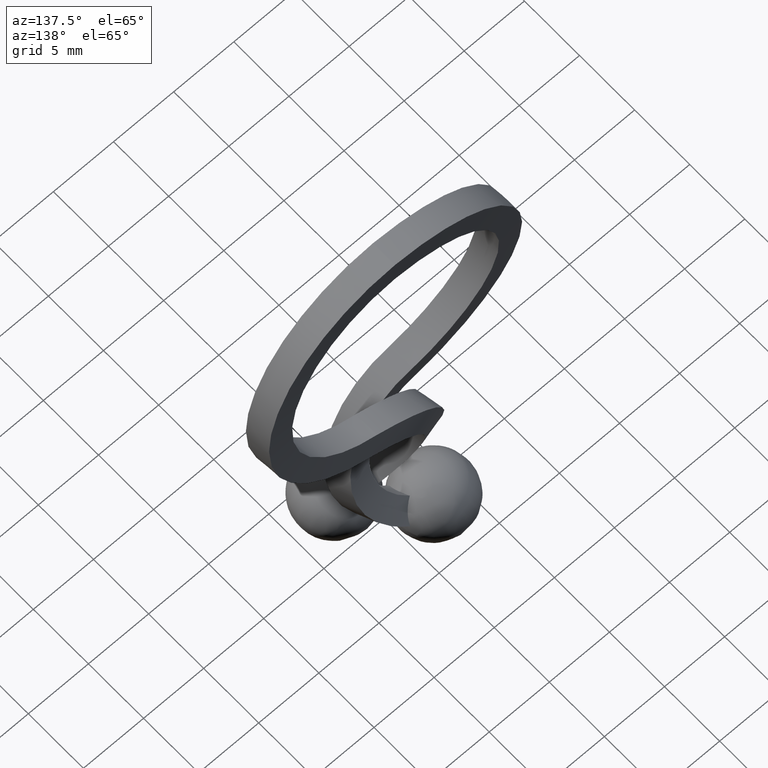
[diagram: clean part render]
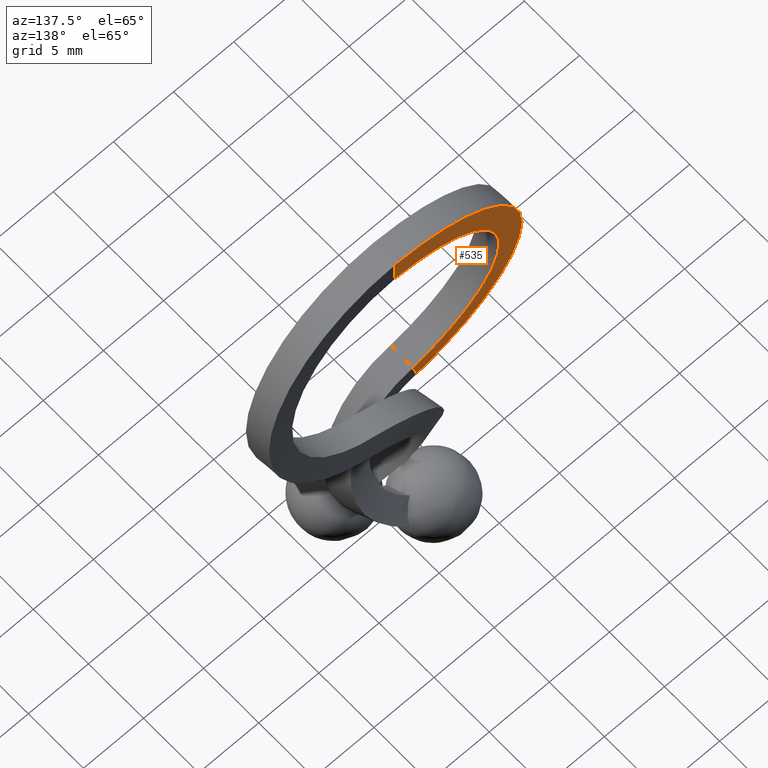
[diagram: same view with one face highlighted and labeled with its STEP entity id]
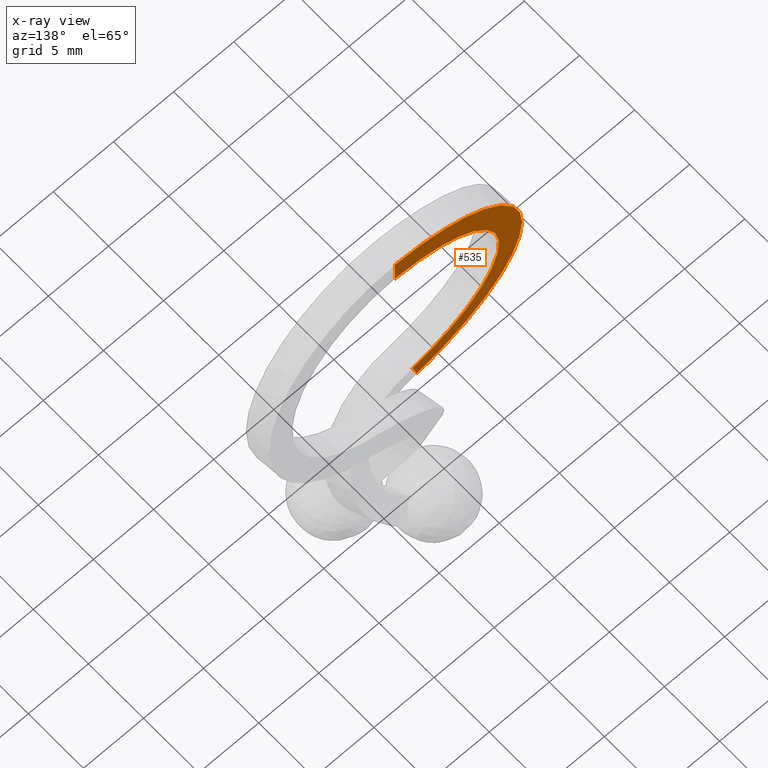
[diagram: x-ray of the same camera — body ghosted, the highlighted face saturated]
A machine part, auxiliary view. The second image highlights one B-rep face of the part: STEP entity #535.
The next image is the same camera in x-ray: the body ghosted, the highlighted face saturated — about 0% of this face is hidden behind the body in this view.
In plain terms, the highlighted face is a freeform B-spline surface patch.
Its self-contained STEP definition (entity closure, byte-faithful):
#378=CARTESIAN_POINT('',(-2.343019980547970,0.026249401664831,-8.919620267446240));
#379=VERTEX_POINT('',#378);
#389=CARTESIAN_POINT('',(0.0,1.000000000000086,9.0));
#390=VERTEX_POINT('',#389);
#391=CARTESIAN_POINT('',(0.0,1.000000000000086,9.0));
#392=CARTESIAN_POINT('',(-2.186437188075754,1.013760282626743,8.978275150847695));
#393=CARTESIAN_POINT('',(-4.340397353724374,0.982594258982866,8.147200249651466));
#394=CARTESIAN_POINT('',(-7.602344983163182,0.845489659956796,5.260894643807681));
#395=CARTESIAN_POINT('',(-8.688726541646952,0.740086162446228,3.218027790631194));
#396=CARTESIAN_POINT('',(-9.256002809646926,0.505669685967320,-1.096263374060212));
#397=CARTESIAN_POINT('',(-8.734482525815411,0.377654658548964,-3.349321000705584));
#398=CARTESIAN_POINT('',(-6.930353852553504,0.215051211385487,-6.069702701553372));
#399=CARTESIAN_POINT('',(-6.166102131294254,0.165803399059278,-6.866641841150305));
#400=CARTESIAN_POINT('',(-4.844223504879516,0.103797593717067,-7.825482280904419));
#401=CARTESIAN_POINT('',(-4.374826034372745,0.085109392166926,-8.105677289951313));
#402=CARTESIAN_POINT('',(-3.638821174862049,0.060498273238149,-8.460077865885245));
#403=CARTESIAN_POINT('',(-3.388175806396376,0.052863348073981,-8.567255992366398));
#404=CARTESIAN_POINT('',(-2.878109633719963,0.038789023012683,-8.758880652709298));
#405=CARTESIAN_POINT('',(-2.635776980060761,0.032743921131515,-8.838305404815928));
#406=CARTESIAN_POINT('',(-2.351549979623532,0.026438718241847,-8.917249435949271));
#407=CARTESIAN_POINT('',(-2.347306179901096,0.026344544103175,-8.918428712524824));
#408=CARTESIAN_POINT('',(-2.343019980547970,0.026249401664831,-8.919620267446240));
#409=B_SPLINE_CURVE_WITH_KNOTS('',3,(#391,#392,#393,#394,#395,#396,#397,#398,#399,#400,#401,#402,#403,#404,#405,#406,#407,#408),.UNSPECIFIED.,.F.,.U.,(4,2,2,2,2,2,2,2,4),(0.0,0.250000000000000,0.500000000000000,0.750000000000000,0.875000000000000,0.937500000000000,0.968750000000000,1.0,1.000468130172540),.UNSPECIFIED.);
#410=EDGE_CURVE('',#390,#379,#409,.T.);
#422=CARTESIAN_POINT('',(0.160074926974946,0.998976724639135,11.011304112899911));
#423=CARTESIAN_POINT('',(0.150418017580615,0.999042801602482,10.337970242072830));
#424=CARTESIAN_POINT('',(0.140761108186234,0.999108878565962,9.664636371245921));
#425=CARTESIAN_POINT('',(0.131104198791851,0.999174955529309,8.991302500418982));
#426=CARTESIAN_POINT('',(0.106724041121813,0.999307068883460,11.010675746363800));
#427=CARTESIAN_POINT('',(0.100285749198659,0.999351768073129,10.337353561781329));
#428=CARTESIAN_POINT('',(0.093847457275471,0.999396467262887,9.664031377198981));
#429=CARTESIAN_POINT('',(0.087409165352283,0.999441166452556,8.990709192616608));
#430=CARTESIAN_POINT('',(-2.614065815425908,1.017801479456671,11.008458419149459));
#431=CARTESIAN_POINT('',(-2.456375673326690,1.016656671177269,10.333932864430860));
#432=CARTESIAN_POINT('',(-2.298685531226608,1.015511862895614,9.659407309709966));
#433=CARTESIAN_POINT('',(-2.140995389126505,1.014367054616214,8.984881754989115));
#434=CARTESIAN_POINT('',(-5.295496244604523,0.979309599957399,9.979379404314406));
#435=CARTESIAN_POINT('',(-4.975545798291381,0.980410517984660,9.365614009780064));
#436=CARTESIAN_POINT('',(-4.655595351979336,0.981511436011647,8.751848615247917));
#437=CARTESIAN_POINT('',(-4.335644905667293,0.982612354038499,8.138083220714666));
#438=CARTESIAN_POINT('',(-9.280145986419191,0.812535347397364,6.466299707155577));
#439=CARTESIAN_POINT('',(-8.718096168948595,0.823576720699825,6.062498339451690));
#440=CARTESIAN_POINT('',(-8.156046351476922,0.834618094002558,5.658696971745615));
#441=CARTESIAN_POINT('',(-7.593996534005243,0.845659467305428,5.254895604040646));
#442=CARTESIAN_POINT('',(-10.609588625305131,0.684147893248679,3.977147912601544));
#443=CARTESIAN_POINT('',(-9.966115321131561,0.702889605287850,3.722848258731068));
#444=CARTESIAN_POINT('',(-9.322642016960190,0.721631317326472,3.468548604860598));
#445=CARTESIAN_POINT('',(-8.679168712786620,0.740373029365370,3.214248950990395));
#446=CARTESIAN_POINT('',(-11.310892434725771,0.398388343486529,-1.283412486214953));
#447=CARTESIAN_POINT('',(-10.622521029040371,0.434331376623536,-1.220719862137829));
#448=CARTESIAN_POINT('',(-9.934149623352731,0.470274409761093,-1.158027238060703));
#449=CARTESIAN_POINT('',(-9.245778217667315,0.506217442898372,-1.095334613983849));
#450=CARTESIAN_POINT('',(-10.679768033454970,0.242232775779345,-4.032425973549360));
#451=CARTESIAN_POINT('',(-10.028113151952720,0.287603562275376,-3.803592276401867));
#452=CARTESIAN_POINT('',(-9.376458270448300,0.332974348771545,-3.574758579254379));
#453=CARTESIAN_POINT('',(-8.724803388944959,0.378345135267439,-3.345924882105801));
#454=CARTESIAN_POINT('',(-8.485494286365423,0.043747390832505,-7.354174212470729));
#455=CARTESIAN_POINT('',(-7.964568123821809,0.101139920555575,-6.923881705083548));
#456=CARTESIAN_POINT('',(-7.443641961279234,0.158532450278656,-6.493589197696409));
#457=CARTESIAN_POINT('',(-6.922715798736001,0.215924980001829,-6.063296690309590));
#458=CARTESIAN_POINT('',(-6.856674244298796,-0.061513905373845,-9.058148874158889));
#459=CARTESIAN_POINT('',(-6.433164141400297,0.002266846398707,-8.524265678839907));
#460=CARTESIAN_POINT('',(-6.009654038501305,0.066047598171409,-7.990382483520773));
#461=CARTESIAN_POINT('',(-5.586143935602313,0.129828349943975,-7.456499288201310));
#462=CARTESIAN_POINT('',(-4.792176010084607,-0.137244880695276,-10.173503621373470));
#463=CARTESIAN_POINT('',(-4.492653709294749,-0.068843477315414,-9.571323407979172));
#464=CARTESIAN_POINT('',(-4.193131408504783,-0.000442073935608,-8.969143194585081));
#465=CARTESIAN_POINT('',(-3.893609107714969,0.067959329444265,-8.366962981190849));
#466=CARTESIAN_POINT('',(-3.549067617514565,-0.171669035765314,-10.642753791147230));
#467=CARTESIAN_POINT('',(-3.324302557718301,-0.101158879456312,-10.011655706206231));
#468=CARTESIAN_POINT('',(-3.099537497922162,-0.030648723147339,-9.380557621264888));
#469=CARTESIAN_POINT('',(-2.874772438125997,0.039861433161628,-8.749459536323949));
#470=CARTESIAN_POINT('',(-3.221151036767519,-0.179815809213675,-10.749628041946670));
#471=CARTESIAN_POINT('',(-3.025055629650234,-0.108602532580780,-10.109351628138810));
#472=CARTESIAN_POINT('',(-2.828960222532813,-0.037389255947922,-9.469075214331237));
#473=CARTESIAN_POINT('',(-2.632864815415461,0.033824020684972,-8.828798800523384));
#474=CARTESIAN_POINT('',(-2.848429722638623,-0.188102741099564,-10.853489330115901));
#475=CARTESIAN_POINT('',(-2.663975728952823,-0.116624964023652,-10.209866302021171));
#476=CARTESIAN_POINT('',(-2.479521735267053,-0.045147186947734,-9.566243273926395));
#477=CARTESIAN_POINT('',(-2.295067741581268,0.026330590128177,-8.922620245831675));
#478=CARTESIAN_POINT('',(-2.790913225134955,-0.189381435552647,-10.869514811020590));
#479=CARTESIAN_POINT('',(-2.603195002798570,-0.117977122003315,-10.226817459584939));
#480=CARTESIAN_POINT('',(-2.415476780462156,-0.046572808453983,-9.584120108149330));
#481=CARTESIAN_POINT('',(-2.227758558125765,0.024831505095349,-8.941422756713713));
#482=CARTESIAN_POINT('',(-2.728113196772656,-0.190777644811101,-10.887013360955590));
#483=CARTESIAN_POINT('',(-2.541490762531413,-0.119349046518466,-10.244012083110700));
#484=CARTESIAN_POINT('',(-2.354868328290169,-0.047920448225833,-9.601010805265846));
#485=CARTESIAN_POINT('',(-2.168245894048930,0.023508150066802,-8.958009527420989));
#486=B_SPLINE_SURFACE_WITH_KNOTS('',3,3,((#422,#426,#430,#434,#438,#442,#446,#450,#454,#458,#462,#466,#470,#474,#478,#482),(#423,#427,#431,#435,#439,#443,#447,#451,#455,#459,#463,#467,#471,#475,#479,#483),(#424,#428,#432,#436,#440,#444,#448,#452,#456,#460,#464,#468,#472,#476,#480,#484),(#425,#429,#433,#437,#441,#445,#449,#453,#457,#461,#465,#469,#473,#477,#481,#485)),.UNSPECIFIED.,.F.,.F.,.U.,(4,4),(4,1,2,2,2,1,2,2,4),(0.0,2.020209359649073),(0.0,0.161593473641400,8.237486770680961,16.313380067720519,24.389273364760079,28.427220013279861,31.455679999669702,32.465166661799643,32.674026877341127),.UNSPECIFIED.);
#487=ORIENTED_EDGE('',*,*,#410,.T.);
#488=CARTESIAN_POINT('',(-2.901770497624195,-0.185794630355313,-10.828303356464280));
#489=VERTEX_POINT('',#488);
#490=CARTESIAN_POINT('',(-2.343019980547970,0.026249401664831,-8.919620267446240));
#491=CARTESIAN_POINT('',(-2.390476096541876,0.008236811523220,-9.081758698906494));
#492=CARTESIAN_POINT('',(-2.437932200781543,-0.009775782775392,-9.243897133344509));
#493=CARTESIAN_POINT('',(-2.485389682380470,-0.027788348679909,-9.406035168364841));
#494=CARTESIAN_POINT('',(-2.532847163982464,-0.045800914585591,-9.568173203395647));
#495=CARTESIAN_POINT('',(-2.580306013627685,-0.063813452317270,-9.730310841732020));
#496=CARTESIAN_POINT('',(-2.627767853168932,-0.081825923876188,-9.892447613443228));
#497=CARTESIAN_POINT('',(-2.719086018244425,-0.116482520989441,-10.204404179540180));
#498=CARTESIAN_POINT('',(-2.810414561498153,-0.151138889379695,-10.516357738549470));
#499=CARTESIAN_POINT('',(-2.901770497624195,-0.185794630355313,-10.828303356464280));
#500=B_SPLINE_CURVE_WITH_KNOTS('',3,(#490,#491,#492,#493,#494,#495,#496,#497,#498,#499),.UNSPECIFIED.,.F.,.U.,(4,3,3,4),(0.0,0.000509692035208,0.001019384070476,0.002000048577367),.UNSPECIFIED.);
#501=EDGE_CURVE('',#379,#489,#500,.T.);
#502=ORIENTED_EDGE('',*,*,#501,.T.);
#503=CARTESIAN_POINT('',(0.0,1.000000000000086,11.0));
#504=VERTEX_POINT('',#503);
#505=CARTESIAN_POINT('',(0.0,1.000000000000086,11.0));
#506=CARTESIAN_POINT('',(-2.664277957426825,1.017030261674924,10.978275083949059));
#507=CARTESIAN_POINT('',(-5.290744502438060,0.979325945925578,9.970263999405550));
#508=CARTESIAN_POINT('',(-9.271798712087030,0.812699328185356,6.460302657272890));
#509=CARTESIAN_POINT('',(-10.600032091296219,0.684426235500527,3.973371185152395));
#510=CARTESIAN_POINT('',(-11.300669097243819,0.398922150897542,-1.282481407660156));
#511=CARTESIAN_POINT('',(-10.670089990874560,0.242906599326255,-4.029027453369905));
#512=CARTESIAN_POINT('',(-8.477636952178450,0.044597705471169,-7.347805872762359));
#513=CARTESIAN_POINT('',(-7.548111985963731,-0.015490846082073,-8.320557902948611));
#514=CARTESIAN_POINT('',(-5.939456721808130,-0.091189688910444,-9.491801968244412));
#515=CARTESIAN_POINT('',(-5.368093919346840,-0.114013566193409,-9.834246619753341));
#516=CARTESIAN_POINT('',(-4.472024684063484,-0.144085488561915,-10.267691713423799));
#517=CARTESIAN_POINT('',(-4.166840199878131,-0.153417204606867,-10.398835482279560));
#518=CARTESIAN_POINT('',(-3.545728627383425,-0.170625282852517,-10.633442993420539));
#519=CARTESIAN_POINT('',(-3.218238728805475,-0.178758186316790,-10.740118986506500));
#520=CARTESIAN_POINT('',(-2.906950619990810,-0.185679167305744,-10.826860227044580));
#521=CARTESIAN_POINT('',(-2.904355745204612,-0.185736859965535,-10.827583293315090));
#522=CARTESIAN_POINT('',(-2.901770497624195,-0.185794630355313,-10.828303356464280));
#523=B_SPLINE_CURVE_WITH_KNOTS('',3,(#505,#506,#507,#508,#509,#510,#511,#512,#513,#514,#515,#516,#517,#518,#519,#520,#521,#522),.UNSPECIFIED.,.F.,.U.,(4,2,2,2,2,2,2,2,4),(0.0,0.250000000000000,0.500000000000000,0.750000000000000,0.875000000000000,0.937500000000000,0.968750000000000,1.0,1.000263757885305),.UNSPECIFIED.);
#524=EDGE_CURVE('',#504,#489,#523,.T.);
#525=ORIENTED_EDGE('',*,*,#524,.F.);
#526=CARTESIAN_POINT('',(0.0,1.000000000000086,9.0));
#527=CARTESIAN_POINT('',(0.0,1.000000000000112,9.666666666666679));
#528=CARTESIAN_POINT('',(0.0,1.000000000000112,10.333333333333300));
#529=CARTESIAN_POINT('',(0.0,1.000000000000086,11.0));
#530=QUASI_UNIFORM_CURVE('',3,(#526,#527,#528,#529),.UNSPECIFIED.,.F.,.U.);
#531=EDGE_CURVE('',#390,#504,#530,.T.);
#532=ORIENTED_EDGE('',*,*,#531,.F.);
#533=EDGE_LOOP('',(#487,#502,#525,#532));
#534=FACE_OUTER_BOUND('',#533,.T.);
#535=ADVANCED_FACE('',(#534),#486,.T.);